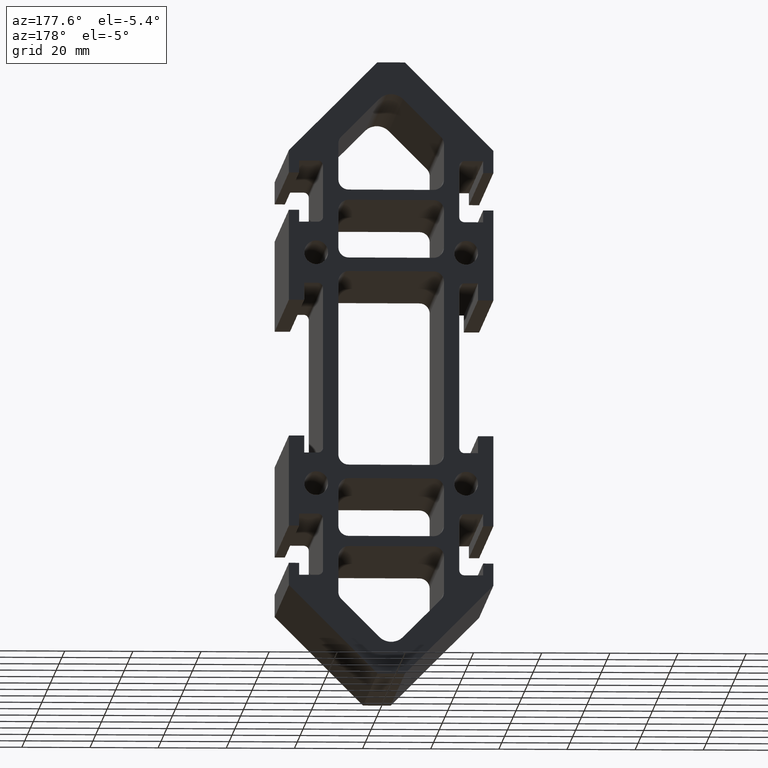
[diagram: clean part render]
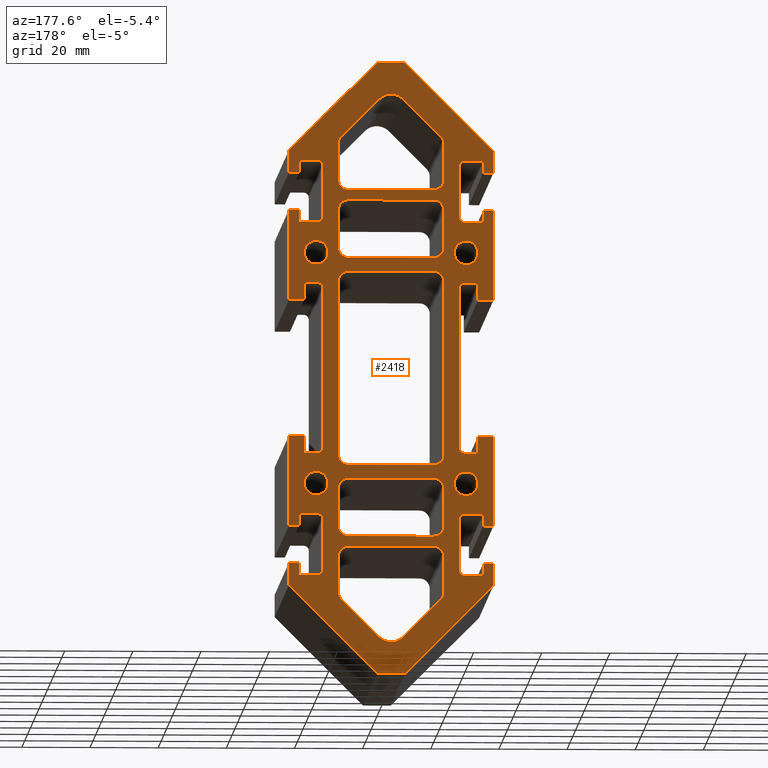
[diagram: same view with one face highlighted and labeled with its STEP entity id]
A machine part, auxiliary view. The second image highlights one B-rep face of the part: STEP entity #2418.
In plain terms, the highlighted planar face has unit normal (0, 1, 0).
Its self-contained STEP definition (entity closure, byte-faithful):
#24=FACE_BOUND('',#358,.T.);
#25=FACE_BOUND('',#359,.T.);
#26=FACE_BOUND('',#360,.T.);
#27=FACE_BOUND('',#361,.T.);
#28=FACE_BOUND('',#362,.T.);
#29=FACE_BOUND('',#363,.T.);
#30=FACE_BOUND('',#364,.T.);
#31=FACE_BOUND('',#365,.T.);
#32=FACE_BOUND('',#366,.T.);
#112=PLANE('',#2635);
#230=FACE_OUTER_BOUND('',#357,.T.);
#357=EDGE_LOOP('',(#2147,#2148,#2149,#2150,#2151,#2152,#2153,#2154,#2155,
#2156,#2157,#2158,#2159,#2160,#2161,#2162,#2163,#2164,#2165,#2166,#2167,
#2168,#2169,#2170,#2171,#2172,#2173,#2174,#2175,#2176,#2177,#2178,#2179,
#2180,#2181,#2182,#2183,#2184,#2185,#2186,#2187,#2188,#2189,#2190,#2191,
#2192,#2193,#2194,#2195,#2196,#2197,#2198,#2199,#2200,#2201,#2202,#2203,
#2204,#2205,#2206,#2207,#2208,#2209,#2210,#2211,#2212,#2213,#2214));
#358=EDGE_LOOP('',(#2215,#2216,#2217,#2218,#2219,#2220,#2221,#2222));
#359=EDGE_LOOP('',(#2223));
#360=EDGE_LOOP('',(#2224));
#361=EDGE_LOOP('',(#2225,#2226,#2227,#2228,#2229,#2230,#2231,#2232));
#362=EDGE_LOOP('',(#2233,#2234,#2235,#2236,#2237,#2238,#2239,#2240,#2241,
#2242));
#363=EDGE_LOOP('',(#2243,#2244,#2245,#2246,#2247,#2248,#2249,#2250,#2251,
#2252));
#364=EDGE_LOOP('',(#2253,#2254,#2255,#2256,#2257,#2258,#2259,#2260));
#365=EDGE_LOOP('',(#2261));
#366=EDGE_LOOP('',(#2262));
#371=LINE('',#3319,#643);
#376=LINE('',#3334,#648);
#382=LINE('',#3349,#654);
#385=LINE('',#3361,#657);
#391=LINE('',#3376,#663);
#394=LINE('',#3388,#666);
#399=LINE('',#3403,#671);
#403=LINE('',#3415,#675);
#407=LINE('',#3427,#679);
#411=LINE('',#3439,#683);
#415=LINE('',#3451,#687);
#420=LINE('',#3466,#692);
#426=LINE('',#3481,#698);
#429=LINE('',#3490,#701);
#433=LINE('',#3505,#705);
#438=LINE('',#3523,#710);
#441=LINE('',#3529,#713);
#444=LINE('',#3535,#716);
#447=LINE('',#3541,#719);
#450=LINE('',#3547,#722);
#452=LINE('',#3550,#724);
#455=LINE('',#3556,#727);
#458=LINE('',#3562,#730);
#461=LINE('',#3568,#733);
#464=LINE('',#3574,#736);
#467=LINE('',#3580,#739);
#470=LINE('',#3586,#742);
#473=LINE('',#3592,#745);
#476=LINE('',#3598,#748);
#479=LINE('',#3604,#751);
#481=LINE('',#3607,#753);
#484=LINE('',#3613,#756);
#487=LINE('',#3619,#759);
#490=LINE('',#3625,#762);
#493=LINE('',#3631,#765);
#496=LINE('',#3637,#768);
#498=LINE('',#3640,#770);
#502=LINE('',#3652,#774);
#507=LINE('',#3667,#779);
#512=LINE('',#3682,#784);
#515=LINE('',#3693,#787);
#521=LINE('',#3709,#793);
#524=LINE('',#3720,#796);
#530=LINE('',#3736,#802);
#535=LINE('',#3751,#807);
#539=LINE('',#3763,#811);
#543=LINE('',#3775,#815);
#547=LINE('',#3787,#819);
#551=LINE('',#3799,#823);
#556=LINE('',#3814,#828);
#559=LINE('',#3825,#831);
#562=LINE('',#3834,#834);
#566=LINE('',#3844,#838);
#568=LINE('',#3852,#840);
#572=LINE('',#3867,#844);
#574=LINE('',#3871,#846);
#578=LINE('',#3879,#850);
#581=LINE('',#3885,#853);
#584=LINE('',#3891,#856);
#587=LINE('',#3897,#859);
#590=LINE('',#3901,#862);
#591=LINE('',#3904,#863);
#595=LINE('',#3912,#867);
#598=LINE('',#3918,#870);
#601=LINE('',#3924,#873);
#604=LINE('',#3930,#876);
#607=LINE('',#3936,#879);
#610=LINE('',#3942,#882);
#613=LINE('',#3948,#885);
#616=LINE('',#3954,#888);
#619=LINE('',#3958,#891);
#620=LINE('',#3961,#892);
#624=LINE('',#3969,#896);
#627=LINE('',#3975,#899);
#630=LINE('',#3981,#902);
#633=LINE('',#3987,#905);
#636=LINE('',#3991,#908);
#637=LINE('',#3993,#909);
#643=VECTOR('',#2656,10.);
#648=VECTOR('',#2669,10.);
#654=VECTOR('',#2683,10.);
#657=VECTOR('',#2694,10.);
#663=VECTOR('',#2708,10.);
#666=VECTOR('',#2719,10.);
#671=VECTOR('',#2732,10.);
#675=VECTOR('',#2744,10.);
#679=VECTOR('',#2756,10.);
#683=VECTOR('',#2768,10.);
#687=VECTOR('',#2780,10.);
#692=VECTOR('',#2793,10.);
#698=VECTOR('',#2807,10.);
#701=VECTOR('',#2818,10.);
#705=VECTOR('',#2836,10.);
#710=VECTOR('',#2855,10.);
#713=VECTOR('',#2860,10.);
#716=VECTOR('',#2865,10.);
#719=VECTOR('',#2870,10.);
#722=VECTOR('',#2875,10.);
#724=VECTOR('',#2879,10.);
#727=VECTOR('',#2884,10.);
#730=VECTOR('',#2889,10.);
#733=VECTOR('',#2894,10.);
#736=VECTOR('',#2899,10.);
#739=VECTOR('',#2904,10.);
#742=VECTOR('',#2909,10.);
#745=VECTOR('',#2914,10.);
#748=VECTOR('',#2919,10.);
#751=VECTOR('',#2924,10.);
#753=VECTOR('',#2928,10.);
#756=VECTOR('',#2933,10.);
#759=VECTOR('',#2938,10.);
#762=VECTOR('',#2943,10.);
#765=VECTOR('',#2948,10.);
#768=VECTOR('',#2953,10.);
#770=VECTOR('',#2957,10.);
#774=VECTOR('',#2969,10.);
#779=VECTOR('',#2982,10.);
#784=VECTOR('',#2995,10.);
#787=VECTOR('',#3006,10.);
#793=VECTOR('',#3020,10.);
#796=VECTOR('',#3031,10.);
#802=VECTOR('',#3045,10.);
#807=VECTOR('',#3058,10.);
#811=VECTOR('',#3070,10.);
#815=VECTOR('',#3082,10.);
#819=VECTOR('',#3094,10.);
#823=VECTOR('',#3106,10.);
#828=VECTOR('',#3119,10.);
#831=VECTOR('',#3130,10.);
#834=VECTOR('',#3141,10.);
#838=VECTOR('',#3153,10.);
#840=VECTOR('',#3163,10.);
#844=VECTOR('',#3181,10.);
#846=VECTOR('',#3185,10.);
#850=VECTOR('',#3191,10.);
#853=VECTOR('',#3196,10.);
#856=VECTOR('',#3201,10.);
#859=VECTOR('',#3206,10.);
#862=VECTOR('',#3211,10.);
#863=VECTOR('',#3214,10.);
#867=VECTOR('',#3220,10.);
#870=VECTOR('',#3225,10.);
#873=VECTOR('',#3230,10.);
#876=VECTOR('',#3235,10.);
#879=VECTOR('',#3240,10.);
#882=VECTOR('',#3245,10.);
#885=VECTOR('',#3250,10.);
#888=VECTOR('',#3255,10.);
#891=VECTOR('',#3260,10.);
#892=VECTOR('',#3263,10.);
#896=VECTOR('',#3269,10.);
#899=VECTOR('',#3274,10.);
#902=VECTOR('',#3279,10.);
#905=VECTOR('',#3284,10.);
#908=VECTOR('',#3289,10.);
#909=VECTOR('',#3292,10.);
#912=CIRCLE('',#2444,1.5);
#914=CIRCLE('',#2447,1.5);
#916=CIRCLE('',#2451,1.5);
#918=CIRCLE('',#2455,1.5);
#920=CIRCLE('',#2459,1.5);
#922=CIRCLE('',#2463,1.5);
#924=CIRCLE('',#2467,3.);
#926=CIRCLE('',#2471,3.);
#928=CIRCLE('',#2475,3.);
#930=CIRCLE('',#2479,3.);
#932=CIRCLE('',#2483,3.);
#934=CIRCLE('',#2487,3.);
#936=CIRCLE('',#2491,3.);
#938=CIRCLE('',#2495,3.);
#940=CIRCLE('',#2499,3.);
#942=CIRCLE('',#2503,3.);
#944=CIRCLE('',#2506,4.99999999999998);
#946=CIRCLE('',#2510,3.5);
#948=CIRCLE('',#2513,3.5);
#950=CIRCLE('',#2538,1.5);
#952=CIRCLE('',#2542,1.5);
#954=CIRCLE('',#2546,1.5);
#956=CIRCLE('',#2550,1.5);
#958=CIRCLE('',#2554,1.5);
#960=CIRCLE('',#2558,1.5);
#962=CIRCLE('',#2562,3.);
#964=CIRCLE('',#2566,3.);
#966=CIRCLE('',#2570,3.);
#968=CIRCLE('',#2574,3.);
#970=CIRCLE('',#2578,3.);
#972=CIRCLE('',#2582,3.);
#974=CIRCLE('',#2586,3.);
#976=CIRCLE('',#2590,3.);
#978=CIRCLE('',#2594,3.);
#980=CIRCLE('',#2598,3.);
#982=CIRCLE('',#2602,4.99999999999998);
#984=CIRCLE('',#2606,3.5);
#986=CIRCLE('',#2609,3.5);
#989=VERTEX_POINT('',#3303);
#990=VERTEX_POINT('',#3305);
#993=VERTEX_POINT('',#3312);
#994=VERTEX_POINT('',#3314);
#995=VERTEX_POINT('',#3318);
#999=VERTEX_POINT('',#3327);
#1000=VERTEX_POINT('',#3329);
#1001=VERTEX_POINT('',#3333);
#1005=VERTEX_POINT('',#3342);
#1006=VERTEX_POINT('',#3344);
#1009=VERTEX_POINT('',#3354);
#1010=VERTEX_POINT('',#3356);
#1011=VERTEX_POINT('',#3360);
#1015=VERTEX_POINT('',#3369);
#1016=VERTEX_POINT('',#3371);
#1019=VERTEX_POINT('',#3381);
#1020=VERTEX_POINT('',#3383);
#1021=VERTEX_POINT('',#3387);
#1025=VERTEX_POINT('',#3396);
#1026=VERTEX_POINT('',#3398);
#1027=VERTEX_POINT('',#3402);
#1030=VERTEX_POINT('',#3410);
#1031=VERTEX_POINT('',#3414);
#1034=VERTEX_POINT('',#3422);
#1035=VERTEX_POINT('',#3426);
#1038=VERTEX_POINT('',#3434);
#1039=VERTEX_POINT('',#3438);
#1042=VERTEX_POINT('',#3446);
#1043=VERTEX_POINT('',#3450);
#1047=VERTEX_POINT('',#3459);
#1048=VERTEX_POINT('',#3461);
#1049=VERTEX_POINT('',#3465);
#1053=VERTEX_POINT('',#3474);
#1054=VERTEX_POINT('',#3476);
#1056=VERTEX_POINT('',#3485);
#1058=VERTEX_POINT('',#3494);
#1060=VERTEX_POINT('',#3500);
#1062=VERTEX_POINT('',#3509);
#1064=VERTEX_POINT('',#3515);
#1066=VERTEX_POINT('',#3521);
#1068=VERTEX_POINT('',#3527);
#1070=VERTEX_POINT('',#3533);
#1072=VERTEX_POINT('',#3539);
#1074=VERTEX_POINT('',#3545);
#1076=VERTEX_POINT('',#3554);
#1078=VERTEX_POINT('',#3560);
#1080=VERTEX_POINT('',#3566);
#1082=VERTEX_POINT('',#3572);
#1084=VERTEX_POINT('',#3578);
#1086=VERTEX_POINT('',#3584);
#1088=VERTEX_POINT('',#3590);
#1090=VERTEX_POINT('',#3596);
#1092=VERTEX_POINT('',#3602);
#1094=VERTEX_POINT('',#3611);
#1096=VERTEX_POINT('',#3617);
#1098=VERTEX_POINT('',#3623);
#1100=VERTEX_POINT('',#3629);
#1102=VERTEX_POINT('',#3635);
#1105=VERTEX_POINT('',#3645);
#1106=VERTEX_POINT('',#3647);
#1109=VERTEX_POINT('',#3657);
#1110=VERTEX_POINT('',#3659);
#1112=VERTEX_POINT('',#3665);
#1115=VERTEX_POINT('',#3672);
#1116=VERTEX_POINT('',#3674);
#1118=VERTEX_POINT('',#3680);
#1121=VERTEX_POINT('',#3687);
#1122=VERTEX_POINT('',#3689);
#1125=VERTEX_POINT('',#3699);
#1126=VERTEX_POINT('',#3701);
#1128=VERTEX_POINT('',#3707);
#1131=VERTEX_POINT('',#3714);
#1132=VERTEX_POINT('',#3716);
#1135=VERTEX_POINT('',#3726);
#1136=VERTEX_POINT('',#3728);
#1138=VERTEX_POINT('',#3734);
#1141=VERTEX_POINT('',#3741);
#1142=VERTEX_POINT('',#3743);
#1144=VERTEX_POINT('',#3749);
#1146=VERTEX_POINT('',#3755);
#1148=VERTEX_POINT('',#3761);
#1150=VERTEX_POINT('',#3767);
#1152=VERTEX_POINT('',#3773);
#1154=VERTEX_POINT('',#3779);
#1156=VERTEX_POINT('',#3785);
#1158=VERTEX_POINT('',#3791);
#1160=VERTEX_POINT('',#3797);
#1163=VERTEX_POINT('',#3804);
#1164=VERTEX_POINT('',#3806);
#1166=VERTEX_POINT('',#3812);
#1169=VERTEX_POINT('',#3819);
#1170=VERTEX_POINT('',#3821);
#1172=VERTEX_POINT('',#3830);
#1174=VERTEX_POINT('',#3839);
#1176=VERTEX_POINT('',#3848);
#1178=VERTEX_POINT('',#3857);
#1180=VERTEX_POINT('',#3863);
#1181=VERTEX_POINT('',#3870);
#1184=VERTEX_POINT('',#3878);
#1186=VERTEX_POINT('',#3884);
#1188=VERTEX_POINT('',#3890);
#1190=VERTEX_POINT('',#3896);
#1191=VERTEX_POINT('',#3903);
#1194=VERTEX_POINT('',#3911);
#1196=VERTEX_POINT('',#3917);
#1198=VERTEX_POINT('',#3923);
#1200=VERTEX_POINT('',#3929);
#1202=VERTEX_POINT('',#3935);
#1204=VERTEX_POINT('',#3941);
#1206=VERTEX_POINT('',#3947);
#1208=VERTEX_POINT('',#3953);
#1209=VERTEX_POINT('',#3960);
#1212=VERTEX_POINT('',#3968);
#1214=VERTEX_POINT('',#3974);
#1216=VERTEX_POINT('',#3980);
#1218=VERTEX_POINT('',#3986);
#1221=EDGE_CURVE('',#990,#989,#912,.T.);
#1225=EDGE_CURVE('',#994,#993,#914,.T.);
#1227=EDGE_CURVE('',#994,#995,#371,.T.);
#1232=EDGE_CURVE('',#1000,#999,#916,.T.);
#1234=EDGE_CURVE('',#1000,#1001,#376,.T.);
#1239=EDGE_CURVE('',#1006,#1005,#918,.T.);
#1242=EDGE_CURVE('',#1006,#999,#382,.T.);
#1245=EDGE_CURVE('',#1010,#1009,#920,.T.);
#1247=EDGE_CURVE('',#1010,#1011,#385,.T.);
#1252=EDGE_CURVE('',#1016,#1015,#922,.T.);
#1255=EDGE_CURVE('',#1016,#1009,#391,.T.);
#1258=EDGE_CURVE('',#1020,#1019,#924,.T.);
#1260=EDGE_CURVE('',#1020,#1021,#394,.T.);
#1265=EDGE_CURVE('',#1026,#1025,#926,.T.);
#1267=EDGE_CURVE('',#1026,#1027,#399,.T.);
#1271=EDGE_CURVE('',#1030,#1027,#928,.T.);
#1273=EDGE_CURVE('',#1030,#1031,#403,.T.);
#1277=EDGE_CURVE('',#1034,#1021,#930,.T.);
#1279=EDGE_CURVE('',#1034,#1035,#407,.T.);
#1283=EDGE_CURVE('',#1038,#1035,#932,.T.);
#1285=EDGE_CURVE('',#1038,#1039,#411,.T.);
#1289=EDGE_CURVE('',#1042,#1031,#934,.T.);
#1291=EDGE_CURVE('',#1042,#1043,#415,.T.);
#1296=EDGE_CURVE('',#1048,#1047,#936,.T.);
#1298=EDGE_CURVE('',#1048,#1049,#420,.T.);
#1303=EDGE_CURVE('',#1054,#1053,#938,.T.);
#1306=EDGE_CURVE('',#1054,#1019,#426,.T.);
#1308=EDGE_CURVE('',#1056,#1043,#940,.T.);
#1311=EDGE_CURVE('',#1056,#1025,#429,.T.);
#1313=EDGE_CURVE('',#1058,#1049,#942,.T.);
#1316=EDGE_CURVE('',#1039,#1060,#944,.T.);
#1319=EDGE_CURVE('',#1060,#1053,#433,.T.);
#1322=EDGE_CURVE('',#1062,#1062,#946,.T.);
#1325=EDGE_CURVE('',#1064,#1064,#948,.T.);
#1328=EDGE_CURVE('',#1066,#989,#438,.T.);
#1331=EDGE_CURVE('',#1068,#1066,#441,.T.);
#1334=EDGE_CURVE('',#1070,#1068,#444,.T.);
#1337=EDGE_CURVE('',#1072,#1070,#447,.T.);
#1340=EDGE_CURVE('',#1074,#1072,#450,.T.);
#1342=EDGE_CURVE('',#1011,#1074,#452,.T.);
#1345=EDGE_CURVE('',#1076,#1015,#455,.T.);
#1348=EDGE_CURVE('',#1078,#1076,#458,.T.);
#1351=EDGE_CURVE('',#1080,#1078,#461,.T.);
#1354=EDGE_CURVE('',#1082,#1080,#464,.T.);
#1357=EDGE_CURVE('',#1084,#1082,#467,.T.);
#1360=EDGE_CURVE('',#1086,#1084,#470,.T.);
#1363=EDGE_CURVE('',#1088,#1086,#473,.T.);
#1366=EDGE_CURVE('',#1090,#1088,#476,.T.);
#1369=EDGE_CURVE('',#1092,#1090,#479,.T.);
#1371=EDGE_CURVE('',#1001,#1092,#481,.T.);
#1374=EDGE_CURVE('',#1094,#1005,#484,.T.);
#1377=EDGE_CURVE('',#1096,#1094,#487,.T.);
#1380=EDGE_CURVE('',#1098,#1096,#490,.T.);
#1383=EDGE_CURVE('',#1100,#1098,#493,.T.);
#1386=EDGE_CURVE('',#1102,#1100,#496,.T.);
#1388=EDGE_CURVE('',#995,#1102,#498,.T.);
#1391=EDGE_CURVE('',#1105,#1106,#950,.T.);
#1394=EDGE_CURVE('',#1105,#990,#502,.T.);
#1397=EDGE_CURVE('',#1109,#1110,#952,.T.);
#1401=EDGE_CURVE('',#1109,#1112,#507,.T.);
#1404=EDGE_CURVE('',#1115,#1116,#954,.T.);
#1408=EDGE_CURVE('',#1115,#1118,#512,.T.);
#1411=EDGE_CURVE('',#1121,#1122,#956,.T.);
#1413=EDGE_CURVE('',#1121,#1116,#515,.T.);
#1417=EDGE_CURVE('',#1125,#1126,#958,.T.);
#1421=EDGE_CURVE('',#1125,#1128,#521,.T.);
#1424=EDGE_CURVE('',#1131,#1132,#960,.T.);
#1426=EDGE_CURVE('',#1131,#1126,#524,.T.);
#1430=EDGE_CURVE('',#1135,#1136,#962,.T.);
#1434=EDGE_CURVE('',#1135,#1138,#530,.T.);
#1437=EDGE_CURVE('',#1141,#1142,#964,.T.);
#1441=EDGE_CURVE('',#1141,#1144,#535,.T.);
#1444=EDGE_CURVE('',#1146,#1144,#966,.T.);
#1447=EDGE_CURVE('',#1146,#1148,#539,.T.);
#1450=EDGE_CURVE('',#1150,#1138,#968,.T.);
#1453=EDGE_CURVE('',#1150,#1152,#543,.T.);
#1456=EDGE_CURVE('',#1154,#1152,#970,.T.);
#1459=EDGE_CURVE('',#1154,#1156,#547,.T.);
#1462=EDGE_CURVE('',#1158,#1148,#972,.T.);
#1465=EDGE_CURVE('',#1158,#1160,#551,.T.);
#1468=EDGE_CURVE('',#1163,#1164,#974,.T.);
#1472=EDGE_CURVE('',#1163,#1166,#556,.T.);
#1475=EDGE_CURVE('',#1169,#1170,#976,.T.);
#1477=EDGE_CURVE('',#1169,#1136,#559,.T.);
#1481=EDGE_CURVE('',#1172,#1160,#978,.T.);
#1482=EDGE_CURVE('',#1172,#1142,#562,.T.);
#1486=EDGE_CURVE('',#1174,#1166,#980,.T.);
#1488=EDGE_CURVE('',#1174,#1058,#566,.T.);
#1491=EDGE_CURVE('',#1156,#1176,#982,.T.);
#1492=EDGE_CURVE('',#1176,#1170,#568,.T.);
#1496=EDGE_CURVE('',#1178,#1178,#984,.T.);
#1499=EDGE_CURVE('',#1180,#1180,#986,.T.);
#1500=EDGE_CURVE('',#1164,#1047,#572,.T.);
#1502=EDGE_CURVE('',#1181,#1106,#574,.T.);
#1506=EDGE_CURVE('',#1184,#1181,#578,.T.);
#1509=EDGE_CURVE('',#1186,#1184,#581,.T.);
#1512=EDGE_CURVE('',#1188,#1186,#584,.T.);
#1515=EDGE_CURVE('',#1190,#1188,#587,.T.);
#1518=EDGE_CURVE('',#1128,#1190,#590,.T.);
#1519=EDGE_CURVE('',#1191,#1132,#591,.T.);
#1523=EDGE_CURVE('',#1194,#1191,#595,.T.);
#1526=EDGE_CURVE('',#1196,#1194,#598,.T.);
#1529=EDGE_CURVE('',#1198,#1196,#601,.T.);
#1532=EDGE_CURVE('',#1200,#1198,#604,.T.);
#1535=EDGE_CURVE('',#1202,#1200,#607,.T.);
#1538=EDGE_CURVE('',#1204,#1202,#610,.T.);
#1541=EDGE_CURVE('',#1206,#1204,#613,.T.);
#1544=EDGE_CURVE('',#1208,#1206,#616,.T.);
#1547=EDGE_CURVE('',#1118,#1208,#619,.T.);
#1548=EDGE_CURVE('',#1209,#1122,#620,.T.);
#1552=EDGE_CURVE('',#1212,#1209,#624,.T.);
#1555=EDGE_CURVE('',#1214,#1212,#627,.T.);
#1558=EDGE_CURVE('',#1216,#1214,#630,.T.);
#1561=EDGE_CURVE('',#1218,#1216,#633,.T.);
#1564=EDGE_CURVE('',#1112,#1218,#636,.T.);
#1565=EDGE_CURVE('',#1110,#993,#637,.T.);
#2147=ORIENTED_EDGE('',*,*,#1394,.T.);
#2148=ORIENTED_EDGE('',*,*,#1221,.T.);
#2149=ORIENTED_EDGE('',*,*,#1328,.F.);
#2150=ORIENTED_EDGE('',*,*,#1331,.F.);
#2151=ORIENTED_EDGE('',*,*,#1334,.F.);
#2152=ORIENTED_EDGE('',*,*,#1337,.F.);
#2153=ORIENTED_EDGE('',*,*,#1340,.F.);
#2154=ORIENTED_EDGE('',*,*,#1342,.F.);
#2155=ORIENTED_EDGE('',*,*,#1247,.F.);
#2156=ORIENTED_EDGE('',*,*,#1245,.T.);
#2157=ORIENTED_EDGE('',*,*,#1255,.F.);
#2158=ORIENTED_EDGE('',*,*,#1252,.T.);
#2159=ORIENTED_EDGE('',*,*,#1345,.F.);
#2160=ORIENTED_EDGE('',*,*,#1348,.F.);
#2161=ORIENTED_EDGE('',*,*,#1351,.F.);
#2162=ORIENTED_EDGE('',*,*,#1354,.F.);
#2163=ORIENTED_EDGE('',*,*,#1357,.F.);
#2164=ORIENTED_EDGE('',*,*,#1360,.F.);
#2165=ORIENTED_EDGE('',*,*,#1363,.F.);
#2166=ORIENTED_EDGE('',*,*,#1366,.F.);
#2167=ORIENTED_EDGE('',*,*,#1369,.F.);
#2168=ORIENTED_EDGE('',*,*,#1371,.F.);
#2169=ORIENTED_EDGE('',*,*,#1234,.F.);
#2170=ORIENTED_EDGE('',*,*,#1232,.T.);
#2171=ORIENTED_EDGE('',*,*,#1242,.F.);
#2172=ORIENTED_EDGE('',*,*,#1239,.T.);
#2173=ORIENTED_EDGE('',*,*,#1374,.F.);
#2174=ORIENTED_EDGE('',*,*,#1377,.F.);
#2175=ORIENTED_EDGE('',*,*,#1380,.F.);
#2176=ORIENTED_EDGE('',*,*,#1383,.F.);
#2177=ORIENTED_EDGE('',*,*,#1386,.F.);
#2178=ORIENTED_EDGE('',*,*,#1388,.F.);
#2179=ORIENTED_EDGE('',*,*,#1227,.F.);
#2180=ORIENTED_EDGE('',*,*,#1225,.T.);
#2181=ORIENTED_EDGE('',*,*,#1565,.F.);
#2182=ORIENTED_EDGE('',*,*,#1397,.F.);
#2183=ORIENTED_EDGE('',*,*,#1401,.T.);
#2184=ORIENTED_EDGE('',*,*,#1564,.T.);
#2185=ORIENTED_EDGE('',*,*,#1561,.T.);
#2186=ORIENTED_EDGE('',*,*,#1558,.T.);
#2187=ORIENTED_EDGE('',*,*,#1555,.T.);
#2188=ORIENTED_EDGE('',*,*,#1552,.T.);
#2189=ORIENTED_EDGE('',*,*,#1548,.T.);
#2190=ORIENTED_EDGE('',*,*,#1411,.F.);
#2191=ORIENTED_EDGE('',*,*,#1413,.T.);
#2192=ORIENTED_EDGE('',*,*,#1404,.F.);
#2193=ORIENTED_EDGE('',*,*,#1408,.T.);
#2194=ORIENTED_EDGE('',*,*,#1547,.T.);
#2195=ORIENTED_EDGE('',*,*,#1544,.T.);
#2196=ORIENTED_EDGE('',*,*,#1541,.T.);
#2197=ORIENTED_EDGE('',*,*,#1538,.T.);
#2198=ORIENTED_EDGE('',*,*,#1535,.T.);
#2199=ORIENTED_EDGE('',*,*,#1532,.T.);
#2200=ORIENTED_EDGE('',*,*,#1529,.T.);
#2201=ORIENTED_EDGE('',*,*,#1526,.T.);
#2202=ORIENTED_EDGE('',*,*,#1523,.T.);
#2203=ORIENTED_EDGE('',*,*,#1519,.T.);
#2204=ORIENTED_EDGE('',*,*,#1424,.F.);
#2205=ORIENTED_EDGE('',*,*,#1426,.T.);
#2206=ORIENTED_EDGE('',*,*,#1417,.F.);
#2207=ORIENTED_EDGE('',*,*,#1421,.T.);
#2208=ORIENTED_EDGE('',*,*,#1518,.T.);
#2209=ORIENTED_EDGE('',*,*,#1515,.T.);
#2210=ORIENTED_EDGE('',*,*,#1512,.T.);
#2211=ORIENTED_EDGE('',*,*,#1509,.T.);
#2212=ORIENTED_EDGE('',*,*,#1506,.T.);
#2213=ORIENTED_EDGE('',*,*,#1502,.T.);
#2214=ORIENTED_EDGE('',*,*,#1391,.F.);
#2215=ORIENTED_EDGE('',*,*,#1500,.F.);
#2216=ORIENTED_EDGE('',*,*,#1468,.F.);
#2217=ORIENTED_EDGE('',*,*,#1472,.T.);
#2218=ORIENTED_EDGE('',*,*,#1486,.F.);
#2219=ORIENTED_EDGE('',*,*,#1488,.T.);
#2220=ORIENTED_EDGE('',*,*,#1313,.T.);
#2221=ORIENTED_EDGE('',*,*,#1298,.F.);
#2222=ORIENTED_EDGE('',*,*,#1296,.T.);
#2223=ORIENTED_EDGE('',*,*,#1325,.F.);
#2224=ORIENTED_EDGE('',*,*,#1322,.F.);
#2225=ORIENTED_EDGE('',*,*,#1273,.F.);
#2226=ORIENTED_EDGE('',*,*,#1271,.T.);
#2227=ORIENTED_EDGE('',*,*,#1267,.F.);
#2228=ORIENTED_EDGE('',*,*,#1265,.T.);
#2229=ORIENTED_EDGE('',*,*,#1311,.F.);
#2230=ORIENTED_EDGE('',*,*,#1308,.T.);
#2231=ORIENTED_EDGE('',*,*,#1291,.F.);
#2232=ORIENTED_EDGE('',*,*,#1289,.T.);
#2233=ORIENTED_EDGE('',*,*,#1260,.F.);
#2234=ORIENTED_EDGE('',*,*,#1258,.T.);
#2235=ORIENTED_EDGE('',*,*,#1306,.F.);
#2236=ORIENTED_EDGE('',*,*,#1303,.T.);
#2237=ORIENTED_EDGE('',*,*,#1319,.F.);
#2238=ORIENTED_EDGE('',*,*,#1316,.F.);
#2239=ORIENTED_EDGE('',*,*,#1285,.F.);
#2240=ORIENTED_EDGE('',*,*,#1283,.T.);
#2241=ORIENTED_EDGE('',*,*,#1279,.F.);
#2242=ORIENTED_EDGE('',*,*,#1277,.T.);
#2243=ORIENTED_EDGE('',*,*,#1434,.T.);
#2244=ORIENTED_EDGE('',*,*,#1450,.F.);
#2245=ORIENTED_EDGE('',*,*,#1453,.T.);
#2246=ORIENTED_EDGE('',*,*,#1456,.F.);
#2247=ORIENTED_EDGE('',*,*,#1459,.T.);
#2248=ORIENTED_EDGE('',*,*,#1491,.T.);
#2249=ORIENTED_EDGE('',*,*,#1492,.T.);
#2250=ORIENTED_EDGE('',*,*,#1475,.F.);
#2251=ORIENTED_EDGE('',*,*,#1477,.T.);
#2252=ORIENTED_EDGE('',*,*,#1430,.F.);
#2253=ORIENTED_EDGE('',*,*,#1447,.T.);
#2254=ORIENTED_EDGE('',*,*,#1462,.F.);
#2255=ORIENTED_EDGE('',*,*,#1465,.T.);
#2256=ORIENTED_EDGE('',*,*,#1481,.F.);
#2257=ORIENTED_EDGE('',*,*,#1482,.T.);
#2258=ORIENTED_EDGE('',*,*,#1437,.F.);
#2259=ORIENTED_EDGE('',*,*,#1441,.T.);
#2260=ORIENTED_EDGE('',*,*,#1444,.F.);
#2261=ORIENTED_EDGE('',*,*,#1496,.T.);
#2262=ORIENTED_EDGE('',*,*,#1499,.T.);
#2418=ADVANCED_FACE('',(#230,#24,#25,#26,#27,#28,#29,#30,#31,#32),#112,
 .T.);
#2444=AXIS2_PLACEMENT_3D('',#3306,#2643,#2644);
#2447=AXIS2_PLACEMENT_3D('',#3315,#2651,#2652);
#2451=AXIS2_PLACEMENT_3D('',#3330,#2664,#2665);
#2455=AXIS2_PLACEMENT_3D('',#3345,#2677,#2678);
#2459=AXIS2_PLACEMENT_3D('',#3357,#2689,#2690);
#2463=AXIS2_PLACEMENT_3D('',#3372,#2702,#2703);
#2467=AXIS2_PLACEMENT_3D('',#3384,#2714,#2715);
#2471=AXIS2_PLACEMENT_3D('',#3399,#2727,#2728);
#2475=AXIS2_PLACEMENT_3D('',#3411,#2739,#2740);
#2479=AXIS2_PLACEMENT_3D('',#3423,#2751,#2752);
#2483=AXIS2_PLACEMENT_3D('',#3435,#2763,#2764);
#2487=AXIS2_PLACEMENT_3D('',#3447,#2775,#2776);
#2491=AXIS2_PLACEMENT_3D('',#3462,#2788,#2789);
#2495=AXIS2_PLACEMENT_3D('',#3477,#2801,#2802);
#2499=AXIS2_PLACEMENT_3D('',#3486,#2812,#2813);
#2503=AXIS2_PLACEMENT_3D('',#3495,#2823,#2824);
#2506=AXIS2_PLACEMENT_3D('',#3501,#2830,#2831);
#2510=AXIS2_PLACEMENT_3D('',#3511,#2842,#2843);
#2513=AXIS2_PLACEMENT_3D('',#3517,#2849,#2850);
#2538=AXIS2_PLACEMENT_3D('',#3648,#2963,#2964);
#2542=AXIS2_PLACEMENT_3D('',#3660,#2975,#2976);
#2546=AXIS2_PLACEMENT_3D('',#3675,#2988,#2989);
#2550=AXIS2_PLACEMENT_3D('',#3690,#3001,#3002);
#2554=AXIS2_PLACEMENT_3D('',#3702,#3013,#3014);
#2558=AXIS2_PLACEMENT_3D('',#3717,#3026,#3027);
#2562=AXIS2_PLACEMENT_3D('',#3729,#3038,#3039);
#2566=AXIS2_PLACEMENT_3D('',#3744,#3051,#3052);
#2570=AXIS2_PLACEMENT_3D('',#3757,#3064,#3065);
#2574=AXIS2_PLACEMENT_3D('',#3769,#3076,#3077);
#2578=AXIS2_PLACEMENT_3D('',#3781,#3088,#3089);
#2582=AXIS2_PLACEMENT_3D('',#3793,#3100,#3101);
#2586=AXIS2_PLACEMENT_3D('',#3807,#3112,#3113);
#2590=AXIS2_PLACEMENT_3D('',#3822,#3125,#3126);
#2594=AXIS2_PLACEMENT_3D('',#3832,#3137,#3138);
#2598=AXIS2_PLACEMENT_3D('',#3841,#3148,#3149);
#2602=AXIS2_PLACEMENT_3D('',#3850,#3159,#3160);
#2606=AXIS2_PLACEMENT_3D('',#3859,#3170,#3171);
#2609=AXIS2_PLACEMENT_3D('',#3865,#3177,#3178);
#2635=AXIS2_PLACEMENT_3D('',#3996,#3296,#3297);
#2643=DIRECTION('center_axis',(0.,-1.,0.));
#2644=DIRECTION('ref_axis',(-0.707106781186552,0.,-0.707106781186543));
#2651=DIRECTION('center_axis',(0.,-1.,0.));
#2652=DIRECTION('ref_axis',(0.707106781186543,0.,-0.707106781186552));
#2656=DIRECTION('',(-1.,0.,6.97159890834733E-15));
#2664=DIRECTION('center_axis',(0.,-1.,0.));
#2665=DIRECTION('ref_axis',(0.707106781186541,0.,-0.707106781186555));
#2669=DIRECTION('',(-1.,0.,8.24042522220466E-15));
#2677=DIRECTION('center_axis',(0.,-1.,0.));
#2678=DIRECTION('ref_axis',(0.70710678118655,0.,0.707106781186545));
#2683=DIRECTION('',(-7.46503136373629E-15,0.,-1.));
#2689=DIRECTION('center_axis',(0.,-1.,0.));
#2690=DIRECTION('ref_axis',(-0.707106781186541,0.,0.707106781186555));
#2694=DIRECTION('',(1.,0.,-9.50925153606198E-15));
#2702=DIRECTION('center_axis',(0.,-1.,0.));
#2703=DIRECTION('ref_axis',(-0.70710678118655,0.,-0.707106781186545));
#2708=DIRECTION('',(6.47816645295838E-15,0.,1.));
#2714=DIRECTION('center_axis',(0.,-1.,0.));
#2715=DIRECTION('ref_axis',(-0.707106781186544,0.,0.707106781186551));
#2719=DIRECTION('',(1.,0.,-6.97159890834733E-15));
#2727=DIRECTION('center_axis',(0.,-1.,0.));
#2728=DIRECTION('ref_axis',(-0.707106781186543,0.,0.707106781186552));
#2732=DIRECTION('',(1.,0.,-6.97159890834733E-15));
#2739=DIRECTION('center_axis',(0.,-1.,0.));
#2740=DIRECTION('ref_axis',(0.707106781186553,0.,0.707106781186542));
#2744=DIRECTION('',(-6.84098443486202E-15,0.,-1.));
#2751=DIRECTION('center_axis',(0.,-1.,0.));
#2752=DIRECTION('ref_axis',(0.707106781186552,0.,0.707106781186543));
#2756=DIRECTION('',(-6.97159890834733E-15,0.,-1.));
#2763=DIRECTION('center_axis',(0.,-1.,0.));
#2764=DIRECTION('ref_axis',(0.923879532511284,0.,-0.382683432365096));
#2768=DIRECTION('',(-0.707106781186553,0.,-0.707106781186542));
#2775=DIRECTION('center_axis',(0.,-1.,0.));
#2776=DIRECTION('ref_axis',(0.707106781186544,0.,-0.707106781186551));
#2780=DIRECTION('',(-1.,0.,6.39858057305693E-15));
#2788=DIRECTION('center_axis',(0.,-1.,0.));
#2789=DIRECTION('ref_axis',(0.707106781186543,0.,-0.707106781186552));
#2793=DIRECTION('',(-1.,0.,6.97159890834733E-15));
#2801=DIRECTION('center_axis',(0.,-1.,0.));
#2802=DIRECTION('ref_axis',(-0.923879532511289,0.,-0.382683432365085));
#2807=DIRECTION('',(7.12232673947322E-15,0.,1.));
#2812=DIRECTION('center_axis',(0.,-1.,0.));
#2813=DIRECTION('ref_axis',(-0.707106781186553,0.,-0.707106781186542));
#2818=DIRECTION('',(6.71036996137671E-15,0.,1.));
#2823=DIRECTION('center_axis',(0.,-1.,0.));
#2824=DIRECTION('ref_axis',(-0.707106781186552,0.,-0.707106781186543));
#2830=DIRECTION('center_axis',(0.,1.,0.));
#2831=DIRECTION('ref_axis',(-0.707106781186553,0.,-0.707106781186542));
#2836=DIRECTION('',(-0.707106781186543,0.,0.707106781186552));
#2842=DIRECTION('center_axis',(0.,1.,0.));
#2843=DIRECTION('ref_axis',(1.,0.,-6.97159890834733E-15));
#2849=DIRECTION('center_axis',(0.,1.,0.));
#2850=DIRECTION('ref_axis',(1.,0.,-6.97159890834733E-15));
#2855=DIRECTION('',(-1.,0.,6.97159890834733E-15));
#2860=DIRECTION('',(-6.97159890834733E-15,0.,-1.));
#2865=DIRECTION('',(-1.,0.,6.97159890834733E-15));
#2870=DIRECTION('',(7.13917974225302E-15,0.,1.));
#2875=DIRECTION('',(1.,0.,-6.97159890834733E-15));
#2879=DIRECTION('',(-6.97159890834733E-15,0.,-1.));
#2884=DIRECTION('',(-1.,0.,5.70277259449001E-15));
#2889=DIRECTION('',(-6.97159890834733E-15,0.,-1.));
#2894=DIRECTION('',(-1.,0.,6.97159890834733E-15));
#2899=DIRECTION('',(7.65009472373021E-15,0.,1.));
#2904=DIRECTION('',(0.707106781186552,0.,0.707106781186543));
#2909=DIRECTION('',(1.,0.,-1.13628675873262E-14));
#2914=DIRECTION('',(0.707106781186544,0.,-0.707106781186551));
#2919=DIRECTION('',(-6.29310309296447E-15,0.,-1.));
#2924=DIRECTION('',(-1.,0.,6.97159890834733E-15));
#2928=DIRECTION('',(6.97159890834733E-15,0.,1.));
#2933=DIRECTION('',(1.,0.,-4.43394628063269E-15));
#2938=DIRECTION('',(8.24042522220466E-15,0.,1.));
#2943=DIRECTION('',(1.,0.,-6.97159890834733E-15));
#2948=DIRECTION('',(-6.97159890834733E-15,0.,-1.));
#2953=DIRECTION('',(-1.,0.,6.97159890834733E-15));
#2957=DIRECTION('',(6.97159890834733E-15,0.,1.));
#2963=DIRECTION('center_axis',(0.,1.,0.));
#2964=DIRECTION('ref_axis',(-0.707106781186548,0.,0.707106781186548));
#2969=DIRECTION('',(1.77635683940025E-16,0.,-1.));
#2975=DIRECTION('center_axis',(0.,1.,0.));
#2976=DIRECTION('ref_axis',(0.707106781186548,0.,0.707106781186548));
#2982=DIRECTION('',(-1.,0.,0.));
#2988=DIRECTION('center_axis',(0.,1.,0.));
#2989=DIRECTION('ref_axis',(0.707106781186545,0.,0.70710678118655));
#2995=DIRECTION('',(-1.,0.,-1.26882631385732E-15));
#3001=DIRECTION('center_axis',(0.,1.,0.));
#3002=DIRECTION('ref_axis',(0.707106781186545,0.,-0.70710678118655));
#3006=DIRECTION('',(-4.93432455388958E-16,0.,1.));
#3013=DIRECTION('center_axis',(0.,1.,0.));
#3014=DIRECTION('ref_axis',(-0.707106781186545,0.,-0.70710678118655));
#3020=DIRECTION('',(1.,0.,2.53765262771464E-15));
#3026=DIRECTION('center_axis',(0.,1.,0.));
#3027=DIRECTION('ref_axis',(-0.707106781186545,0.,0.70710678118655));
#3031=DIRECTION('',(-4.93432455388958E-16,0.,-1.));
#3038=DIRECTION('center_axis',(0.,1.,0.));
#3039=DIRECTION('ref_axis',(-0.707106781186548,0.,-0.707106781186547));
#3045=DIRECTION('',(1.,0.,0.));
#3051=DIRECTION('center_axis',(0.,1.,0.));
#3052=DIRECTION('ref_axis',(-0.707106781186547,0.,-0.707106781186547));
#3058=DIRECTION('',(1.,0.,0.));
#3064=DIRECTION('center_axis',(0.,1.,0.));
#3065=DIRECTION('ref_axis',(0.707106781186548,0.,-0.707106781186547));
#3070=DIRECTION('',(1.30614473485312E-16,0.,1.));
#3076=DIRECTION('center_axis',(0.,1.,0.));
#3077=DIRECTION('ref_axis',(0.707106781186547,0.,-0.707106781186548));
#3082=DIRECTION('',(0.,0.,1.));
#3088=DIRECTION('center_axis',(0.,1.,0.));
#3089=DIRECTION('ref_axis',(0.923879532511287,0.,0.382683432365089));
#3094=DIRECTION('',(-0.707106781186548,0.,0.707106781186547));
#3100=DIRECTION('center_axis',(0.,1.,0.));
#3101=DIRECTION('ref_axis',(0.707106781186549,0.,0.707106781186546));
#3106=DIRECTION('',(-1.,0.,5.73018335290403E-16));
#3112=DIRECTION('center_axis',(0.,1.,0.));
#3113=DIRECTION('ref_axis',(0.707106781186547,0.,0.707106781186547));
#3119=DIRECTION('',(-1.,0.,0.));
#3125=DIRECTION('center_axis',(0.,1.,0.));
#3126=DIRECTION('ref_axis',(-0.923879532511286,0.,0.382683432365092));
#3130=DIRECTION('',(1.50727831125883E-16,0.,-1.));
#3137=DIRECTION('center_axis',(0.,1.,0.));
#3138=DIRECTION('ref_axis',(-0.707106781186548,0.,0.707106781186547));
#3141=DIRECTION('',(-2.61228946970625E-16,0.,-1.));
#3148=DIRECTION('center_axis',(0.,1.,0.));
#3149=DIRECTION('ref_axis',(-0.707106781186547,0.,0.707106781186547));
#3153=DIRECTION('',(0.,0.,-1.));
#3159=DIRECTION('center_axis',(0.,-1.,0.));
#3160=DIRECTION('ref_axis',(-0.707106781186548,0.,0.707106781186547));
#3163=DIRECTION('',(-0.707106781186548,0.,-0.707106781186547));
#3170=DIRECTION('center_axis',(0.,-1.,0.));
#3171=DIRECTION('ref_axis',(1.,0.,0.));
#3177=DIRECTION('center_axis',(0.,-1.,0.));
#3178=DIRECTION('ref_axis',(1.,0.,0.));
#3181=DIRECTION('',(-6.97159890834733E-15,0.,-1.));
#3185=DIRECTION('',(-1.,0.,0.));
#3191=DIRECTION('',(0.,0.,1.));
#3196=DIRECTION('',(-1.,0.,0.));
#3201=DIRECTION('',(1.67580833905684E-16,0.,-1.));
#3206=DIRECTION('',(1.,0.,0.));
#3211=DIRECTION('',(0.,0.,1.));
#3214=DIRECTION('',(-1.,0.,1.26882631385732E-15));
#3220=DIRECTION('',(0.,0.,1.));
#3225=DIRECTION('',(-1.,0.,0.));
#3230=DIRECTION('',(6.78495815382873E-16,0.,-1.));
#3235=DIRECTION('',(0.707106781186547,0.,-0.707106781186548));
#3240=DIRECTION('',(1.,0.,4.3912686789789E-15));
#3245=DIRECTION('',(0.707106781186549,0.,0.707106781186546));
#3250=DIRECTION('',(6.78495815382861E-16,0.,1.));
#3255=DIRECTION('',(-1.,0.,0.));
#3260=DIRECTION('',(0.,0.,-1.));
#3263=DIRECTION('',(1.,0.,-2.53765262771464E-15));
#3269=DIRECTION('',(1.26882631385732E-15,0.,-1.));
#3274=DIRECTION('',(1.,0.,0.));
#3279=DIRECTION('',(0.,0.,1.));
#3284=DIRECTION('',(-1.,0.,0.));
#3289=DIRECTION('',(0.,0.,-1.));
#3292=DIRECTION('',(-6.88278106637732E-15,0.,-1.));
#3296=DIRECTION('center_axis',(0.,1.,0.));
#3297=DIRECTION('ref_axis',(0.,0.,1.));
#3303=CARTESIAN_POINT('',(21.4999999999998,100.,-25.0000000000003));
#3305=CARTESIAN_POINT('',(19.9999999999998,100.,-23.5000000000003));
#3306=CARTESIAN_POINT('Origin',(21.4999999999998,100.,-23.5000000000003));
#3312=CARTESIAN_POINT('',(-20.0000000000002,100.,-23.5));
#3314=CARTESIAN_POINT('',(-21.5000000000002,100.,-25.));
#3315=CARTESIAN_POINT('Origin',(-21.5000000000002,100.,-23.5));
#3318=CARTESIAN_POINT('',(-25.5000000000002,100.,-25.));
#3319=CARTESIAN_POINT('',(-25.5000000000002,100.,-25.));
#3327=CARTESIAN_POINT('',(-20.0000000000004,100.,-59.5));
#3329=CARTESIAN_POINT('',(-21.5000000000004,100.,-61.));
#3330=CARTESIAN_POINT('Origin',(-21.5000000000004,100.,-59.5));
#3333=CARTESIAN_POINT('',(-27.0000000000004,100.,-61.));
#3334=CARTESIAN_POINT('',(-27.0000000000004,100.,-61.));
#3342=CARTESIAN_POINT('',(-21.5000000000003,100.,-43.));
#3344=CARTESIAN_POINT('',(-20.0000000000003,100.,-44.5));
#3345=CARTESIAN_POINT('Origin',(-21.5000000000003,100.,-44.5));
#3349=CARTESIAN_POINT('',(-20.0000000000004,100.,-61.));
#3354=CARTESIAN_POINT('',(19.9999999999997,100.,-44.5000000000003));
#3356=CARTESIAN_POINT('',(21.4999999999997,100.,-43.0000000000003));
#3357=CARTESIAN_POINT('Origin',(21.4999999999997,100.,-44.5000000000003));
#3360=CARTESIAN_POINT('',(26.9999999999997,100.,-43.0000000000003));
#3361=CARTESIAN_POINT('',(26.9999999999997,100.,-43.0000000000003));
#3369=CARTESIAN_POINT('',(21.4999999999996,100.,-61.0000000000003));
#3371=CARTESIAN_POINT('',(19.9999999999996,100.,-59.5000000000003));
#3372=CARTESIAN_POINT('Origin',(21.4999999999996,100.,-59.5000000000003));
#3376=CARTESIAN_POINT('',(19.9999999999997,100.,-43.0000000000003));
#3381=CARTESIAN_POINT('',(-15.5000000000004,100.,-55.5));
#3383=CARTESIAN_POINT('',(-12.5000000000004,100.,-52.5000000000001));
#3384=CARTESIAN_POINT('Origin',(-12.5000000000004,100.,-55.5));
#3387=CARTESIAN_POINT('',(12.4999999999996,100.,-52.5000000000002));
#3388=CARTESIAN_POINT('',(7.74999999999963,100.,-52.5000000000002));
#3396=CARTESIAN_POINT('',(-15.5000000000002,100.,-35.5));
#3398=CARTESIAN_POINT('',(-12.5000000000002,100.,-32.5));
#3399=CARTESIAN_POINT('Origin',(-12.5000000000002,100.,-35.5));
#3402=CARTESIAN_POINT('',(12.4999999999998,100.,-32.5000000000002));
#3403=CARTESIAN_POINT('',(7.74999999999977,100.,-32.5000000000002));
#3410=CARTESIAN_POINT('',(15.4999999999997,100.,-35.5000000000002));
#3411=CARTESIAN_POINT('Origin',(12.4999999999998,100.,-35.5000000000002));
#3414=CARTESIAN_POINT('',(15.4999999999997,100.,-46.5000000000003));
#3415=CARTESIAN_POINT('',(15.4999999999997,100.,-44.7950051090619));
#3422=CARTESIAN_POINT('',(15.4999999999996,100.,-55.5000000000003));
#3423=CARTESIAN_POINT('Origin',(12.4999999999996,100.,-55.5000000000002));
#3426=CARTESIAN_POINT('',(15.4999999999995,100.,-65.988852711707));
#3427=CARTESIAN_POINT('',(15.4999999999996,100.,-53.6607518084749));
#3434=CARTESIAN_POINT('',(14.6213203435592,100.,-68.1101730552667));
#3435=CARTESIAN_POINT('Origin',(12.4999999999995,100.,-65.988852711707));
#3438=CARTESIAN_POINT('',(3.53553390593218,100.,-79.1959594928935));
#3439=CARTESIAN_POINT('',(12.4281377481416,100.,-70.3033556506843));
#3446=CARTESIAN_POINT('',(12.4999999999997,100.,-49.5000000000002));
#3447=CARTESIAN_POINT('Origin',(12.4999999999997,100.,-46.5000000000002));
#3450=CARTESIAN_POINT('',(-12.5000000000003,100.,-49.5000000000001));
#3451=CARTESIAN_POINT('',(-7.75000000000034,100.,-49.5000000000001));
#3459=CARTESIAN_POINT('',(15.4999999999998,100.,-25.5000000000003));
#3461=CARTESIAN_POINT('',(12.4999999999998,100.,-28.5000000000002));
#3462=CARTESIAN_POINT('Origin',(12.4999999999998,100.,-25.5000000000002));
#3465=CARTESIAN_POINT('',(-12.5000000000002,100.,-28.5000000000001));
#3466=CARTESIAN_POINT('',(-15.5000000000002,100.,-28.5));
#3474=CARTESIAN_POINT('',(-14.6213203435601,100.,-68.1101730552665));
#3476=CARTESIAN_POINT('',(-15.5000000000005,100.,-65.9888527117068));
#3477=CARTESIAN_POINT('Origin',(-12.5000000000005,100.,-65.9888527117068));
#3481=CARTESIAN_POINT('',(-15.5000000000003,100.,-46.2950051090617));
#3485=CARTESIAN_POINT('',(-15.5000000000003,100.,-46.5000000000001));
#3486=CARTESIAN_POINT('Origin',(-12.5000000000003,100.,-46.5000000000001));
#3490=CARTESIAN_POINT('',(-15.5000000000003,100.,-36.2950051090617));
#3494=CARTESIAN_POINT('',(-15.5000000000002,100.,-25.5));
#3495=CARTESIAN_POINT('Origin',(-12.5000000000002,100.,-25.5000000000001));
#3500=CARTESIAN_POINT('',(-3.53553390593329,100.,-79.1959594928935));
#3501=CARTESIAN_POINT('Origin',(-5.3191503252565E-13,100.,-75.6604255869608));
#3505=CARTESIAN_POINT('',(-18.4103707951761,100.,-64.3211226036504));
#3509=CARTESIAN_POINT('',(18.4999999999998,100.,-34.0000000000003));
#3511=CARTESIAN_POINT('Origin',(21.9999999999998,100.,-34.0000000000003));
#3515=CARTESIAN_POINT('',(-25.5000000000002,100.,-34.));
#3517=CARTESIAN_POINT('Origin',(-22.0000000000002,100.,-34.));
#3521=CARTESIAN_POINT('',(25.4999999999998,100.,-25.0000000000003));
#3523=CARTESIAN_POINT('',(19.9999999999998,100.,-25.0000000000003));
#3527=CARTESIAN_POINT('',(25.4999999999999,100.,-20.0000000000003));
#3529=CARTESIAN_POINT('',(25.4999999999998,100.,-25.0000000000003));
#3533=CARTESIAN_POINT('',(29.9999999999999,100.,-20.0000000000003));
#3535=CARTESIAN_POINT('',(25.4999999999999,100.,-20.0000000000003));
#3539=CARTESIAN_POINT('',(29.9999999999997,100.,-46.5000000000003));
#3541=CARTESIAN_POINT('',(29.9999999999999,100.,-20.0000000000003));
#3545=CARTESIAN_POINT('',(26.9999999999997,100.,-46.5000000000003));
#3547=CARTESIAN_POINT('',(29.9999999999997,100.,-46.5000000000003));
#3550=CARTESIAN_POINT('',(26.9999999999997,100.,-46.5000000000003));
#3554=CARTESIAN_POINT('',(26.9999999999996,100.,-61.0000000000003));
#3556=CARTESIAN_POINT('',(19.9999999999996,100.,-61.0000000000003));
#3560=CARTESIAN_POINT('',(26.9999999999996,100.,-57.5000000000003));
#3562=CARTESIAN_POINT('',(26.9999999999996,100.,-61.0000000000003));
#3566=CARTESIAN_POINT('',(29.9999999999996,100.,-57.5000000000004));
#3568=CARTESIAN_POINT('',(26.9999999999996,100.,-57.5000000000003));
#3572=CARTESIAN_POINT('',(29.9999999999995,100.,-64.0452018978111));
#3574=CARTESIAN_POINT('',(29.9999999999996,100.,-57.5000000000004));
#3578=CARTESIAN_POINT('',(4.04520189781015,100.,-90.0000000000002));
#3580=CARTESIAN_POINT('',(29.9999999999995,100.,-64.0452018978111));
#3584=CARTESIAN_POINT('',(-4.04520189781142,100.,-90.0000000000001));
#3586=CARTESIAN_POINT('',(4.04520189781015,100.,-90.0000000000002));
#3590=CARTESIAN_POINT('',(-30.0000000000004,100.,-64.0452018978108));
#3592=CARTESIAN_POINT('',(-4.04520189781142,100.,-90.0000000000001));
#3596=CARTESIAN_POINT('',(-30.0000000000004,100.,-57.4999999999999));
#3598=CARTESIAN_POINT('',(-30.0000000000004,100.,-64.0452018978108));
#3602=CARTESIAN_POINT('',(-27.0000000000004,100.,-57.5));
#3604=CARTESIAN_POINT('',(-30.0000000000004,100.,-57.4999999999999));
#3607=CARTESIAN_POINT('',(-27.0000000000004,100.,-57.5));
#3611=CARTESIAN_POINT('',(-27.0000000000003,100.,-43.));
#3613=CARTESIAN_POINT('',(-20.0000000000003,100.,-43.));
#3617=CARTESIAN_POINT('',(-27.0000000000003,100.,-46.5));
#3619=CARTESIAN_POINT('',(-27.0000000000003,100.,-43.));
#3623=CARTESIAN_POINT('',(-30.0000000000003,100.,-46.4999999999999));
#3625=CARTESIAN_POINT('',(-27.0000000000003,100.,-46.5));
#3629=CARTESIAN_POINT('',(-30.0000000000001,100.,-19.9999999999999));
#3631=CARTESIAN_POINT('',(-30.0000000000003,100.,-46.4999999999999));
#3635=CARTESIAN_POINT('',(-25.5000000000001,100.,-20.));
#3637=CARTESIAN_POINT('',(-30.0000000000001,100.,-19.9999999999999));
#3640=CARTESIAN_POINT('',(-25.5000000000001,100.,-20.));
#3645=CARTESIAN_POINT('',(20.,100.,23.5));
#3647=CARTESIAN_POINT('',(21.5,100.,25.));
#3648=CARTESIAN_POINT('Origin',(21.5,100.,23.5));
#3652=CARTESIAN_POINT('',(20.,100.,0.));
#3657=CARTESIAN_POINT('',(-21.5,100.,25.));
#3659=CARTESIAN_POINT('',(-20.,100.,23.5));
#3660=CARTESIAN_POINT('Origin',(-21.5,100.,23.5));
#3665=CARTESIAN_POINT('',(-25.5,100.,25.));
#3667=CARTESIAN_POINT('',(-25.5,100.,25.));
#3672=CARTESIAN_POINT('',(-21.5,100.,61.));
#3674=CARTESIAN_POINT('',(-20.,100.,59.5));
#3675=CARTESIAN_POINT('Origin',(-21.5,100.,59.5));
#3680=CARTESIAN_POINT('',(-27.,100.,61.));
#3682=CARTESIAN_POINT('',(-27.,100.,61.));
#3687=CARTESIAN_POINT('',(-20.,100.,44.5));
#3689=CARTESIAN_POINT('',(-21.5,100.,43.));
#3690=CARTESIAN_POINT('Origin',(-21.5,100.,44.5));
#3693=CARTESIAN_POINT('',(-20.,100.,61.));
#3699=CARTESIAN_POINT('',(21.5,100.,43.));
#3701=CARTESIAN_POINT('',(20.,100.,44.5));
#3702=CARTESIAN_POINT('Origin',(21.5,100.,44.5));
#3707=CARTESIAN_POINT('',(27.,100.,43.));
#3709=CARTESIAN_POINT('',(27.,100.,43.));
#3714=CARTESIAN_POINT('',(20.,100.,59.5));
#3716=CARTESIAN_POINT('',(21.5,100.,61.));
#3717=CARTESIAN_POINT('Origin',(21.5,100.,59.5));
#3720=CARTESIAN_POINT('',(20.,100.,43.));
#3726=CARTESIAN_POINT('',(-12.5,100.,52.5));
#3728=CARTESIAN_POINT('',(-15.5,100.,55.5));
#3729=CARTESIAN_POINT('Origin',(-12.5,100.,55.5));
#3734=CARTESIAN_POINT('',(12.5,100.,52.5));
#3736=CARTESIAN_POINT('',(7.75,100.,52.5));
#3741=CARTESIAN_POINT('',(-12.5,100.,32.5));
#3743=CARTESIAN_POINT('',(-15.5,100.,35.5));
#3744=CARTESIAN_POINT('Origin',(-12.5,100.,35.5));
#3749=CARTESIAN_POINT('',(12.5,100.,32.5));
#3751=CARTESIAN_POINT('',(7.75,100.,32.5));
#3755=CARTESIAN_POINT('',(15.5,100.,35.5));
#3757=CARTESIAN_POINT('Origin',(12.5,100.,35.5));
#3761=CARTESIAN_POINT('',(15.5,100.,46.5));
#3763=CARTESIAN_POINT('',(15.5,100.,44.7950051090617));
#3767=CARTESIAN_POINT('',(15.5,100.,55.5));
#3769=CARTESIAN_POINT('Origin',(12.5,100.,55.5));
#3773=CARTESIAN_POINT('',(15.5,100.,65.9888527117068));
#3775=CARTESIAN_POINT('',(15.5,100.,53.6607518084747));
#3779=CARTESIAN_POINT('',(14.6213203435596,100.,68.1101730552664));
#3781=CARTESIAN_POINT('Origin',(12.5,100.,65.9888527117068));
#3785=CARTESIAN_POINT('',(3.53553390593274,100.,79.1959594928933));
#3787=CARTESIAN_POINT('',(12.428137748142,100.,70.303355650684));
#3791=CARTESIAN_POINT('',(12.5,100.,49.5));
#3793=CARTESIAN_POINT('Origin',(12.5,100.,46.5));
#3797=CARTESIAN_POINT('',(-12.5,100.,49.5));
#3799=CARTESIAN_POINT('',(-7.75,100.,49.5));
#3804=CARTESIAN_POINT('',(12.5,100.,28.5));
#3806=CARTESIAN_POINT('',(15.5,100.,25.5));
#3807=CARTESIAN_POINT('Origin',(12.5,100.,25.5));
#3812=CARTESIAN_POINT('',(-12.5,100.,28.5));
#3814=CARTESIAN_POINT('',(-15.5,100.,28.5));
#3819=CARTESIAN_POINT('',(-15.5,100.,65.9888527117068));
#3821=CARTESIAN_POINT('',(-14.6213203435596,100.,68.1101730552664));
#3822=CARTESIAN_POINT('Origin',(-12.5,100.,65.9888527117068));
#3825=CARTESIAN_POINT('',(-15.5,100.,46.2950051090617));
#3830=CARTESIAN_POINT('',(-15.5,100.,46.5));
#3832=CARTESIAN_POINT('Origin',(-12.5,100.,46.5));
#3834=CARTESIAN_POINT('',(-15.5,100.,36.2950051090617));
#3839=CARTESIAN_POINT('',(-15.5,100.,25.5));
#3841=CARTESIAN_POINT('Origin',(-12.5,100.,25.5));
#3844=CARTESIAN_POINT('',(-15.5,100.,-1.56860975437815E-14));
#3848=CARTESIAN_POINT('',(-3.53553390593274,100.,79.1959594928933));
#3850=CARTESIAN_POINT('Origin',(-4.44089209850063E-15,100.,75.6604255869606));
#3852=CARTESIAN_POINT('',(-18.4103707951757,100.,64.3211226036504));
#3857=CARTESIAN_POINT('',(18.5,100.,34.));
#3859=CARTESIAN_POINT('Origin',(22.,100.,34.));
#3863=CARTESIAN_POINT('',(-25.5,100.,34.));
#3865=CARTESIAN_POINT('Origin',(-22.,100.,34.));
#3867=CARTESIAN_POINT('',(15.4999999999998,100.,-28.5000000000002));
#3870=CARTESIAN_POINT('',(25.5,100.,25.));
#3871=CARTESIAN_POINT('',(20.,100.,25.));
#3878=CARTESIAN_POINT('',(25.5,100.,20.));
#3879=CARTESIAN_POINT('',(25.5,100.,25.));
#3884=CARTESIAN_POINT('',(30.,100.,20.));
#3885=CARTESIAN_POINT('',(25.5,100.,20.));
#3890=CARTESIAN_POINT('',(30.,100.,46.5));
#3891=CARTESIAN_POINT('',(30.,100.,20.));
#3896=CARTESIAN_POINT('',(27.,100.,46.5));
#3897=CARTESIAN_POINT('',(30.,100.,46.5));
#3901=CARTESIAN_POINT('',(27.,100.,46.5));
#3903=CARTESIAN_POINT('',(27.,100.,61.));
#3904=CARTESIAN_POINT('',(20.,100.,61.));
#3911=CARTESIAN_POINT('',(27.,100.,57.5));
#3912=CARTESIAN_POINT('',(27.,100.,61.));
#3917=CARTESIAN_POINT('',(30.,100.,57.5));
#3918=CARTESIAN_POINT('',(27.,100.,57.5));
#3923=CARTESIAN_POINT('',(30.,100.,64.0452018978107));
#3924=CARTESIAN_POINT('',(30.,100.,57.5));
#3929=CARTESIAN_POINT('',(4.04520189781078,100.,90.));
#3930=CARTESIAN_POINT('',(30.,100.,64.0452018978107));
#3935=CARTESIAN_POINT('',(-4.04520189781079,100.,90.));
#3936=CARTESIAN_POINT('',(4.04520189781078,100.,90.));
#3941=CARTESIAN_POINT('',(-30.,100.,64.0452018978109));
#3942=CARTESIAN_POINT('',(-4.04520189781079,100.,90.));
#3947=CARTESIAN_POINT('',(-30.,100.,57.5));
#3948=CARTESIAN_POINT('',(-30.,100.,64.0452018978109));
#3953=CARTESIAN_POINT('',(-27.,100.,57.5));
#3954=CARTESIAN_POINT('',(-30.,100.,57.5));
#3958=CARTESIAN_POINT('',(-27.,100.,57.5));
#3960=CARTESIAN_POINT('',(-27.,100.,43.));
#3961=CARTESIAN_POINT('',(-20.,100.,43.));
#3968=CARTESIAN_POINT('',(-27.,100.,46.5));
#3969=CARTESIAN_POINT('',(-27.,100.,43.));
#3974=CARTESIAN_POINT('',(-30.,100.,46.5));
#3975=CARTESIAN_POINT('',(-27.,100.,46.5));
#3980=CARTESIAN_POINT('',(-30.,100.,20.));
#3981=CARTESIAN_POINT('',(-30.,100.,46.5));
#3986=CARTESIAN_POINT('',(-25.5,100.,20.));
#3987=CARTESIAN_POINT('',(-30.,100.,20.));
#3991=CARTESIAN_POINT('',(-25.5,100.,20.));
#3993=CARTESIAN_POINT('',(-20.0000000000002,100.,-25.));
#3996=CARTESIAN_POINT('Origin',(-4.44089209850063E-15,100.,40.0900102181233));